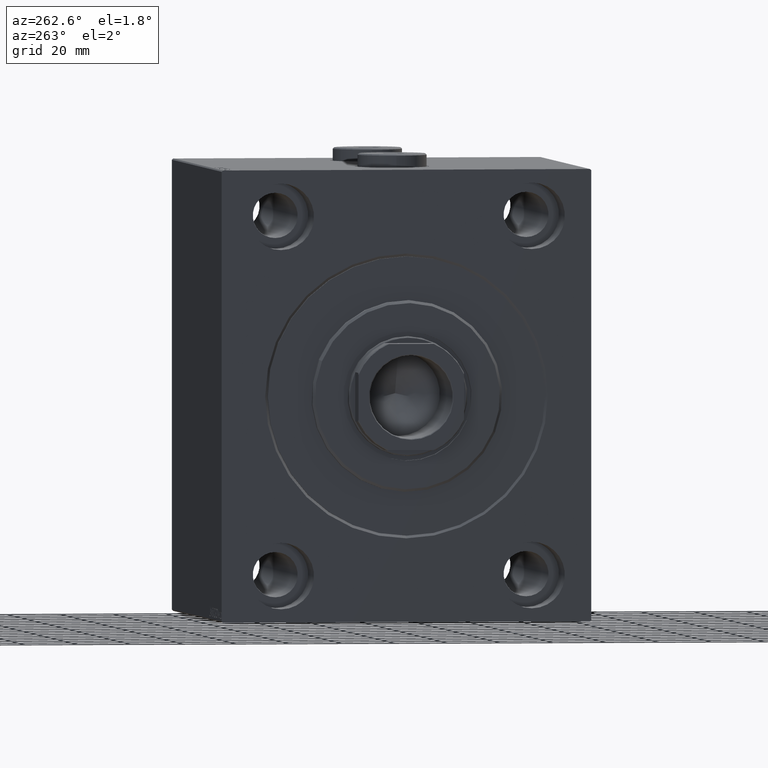
[diagram: clean part render]
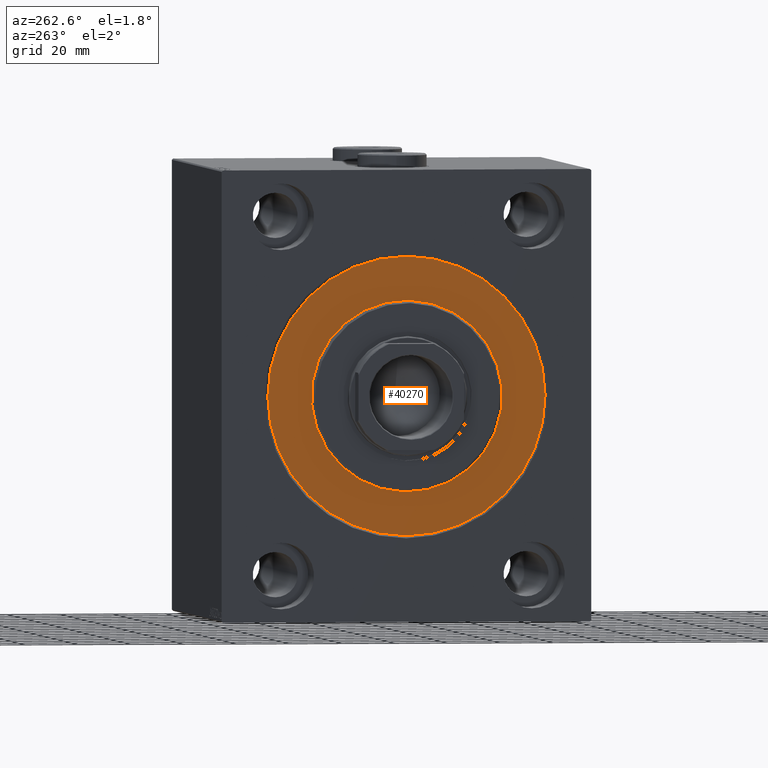
[diagram: same view with one face highlighted and labeled with its STEP entity id]
A machine part, auxiliary view. The second image highlights one B-rep face of the part: STEP entity #40270.
In plain terms, the highlighted planar face has unit normal (1, 0, -0).
Its self-contained STEP definition (entity closure, byte-faithful):
#820 = AXIS2_PLACEMENT_3D ( 'NONE', #12125, #5035, #35630 ) ;
#2230 = PLANE ( 'NONE',  #33795 ) ;
#3439 = DIRECTION ( 'NONE',  ( 0.000000000000000000, 0.000000000000000000, 1.000000000000000000 ) ) ;
#3952 = EDGE_CURVE ( 'NONE', #15549, #27847, #6601, .T. ) ;
#4103 = ORIENTED_EDGE ( 'NONE', *, *, #36922, .F. ) ;
#5035 = DIRECTION ( 'NONE',  ( 1.000000000000000000, -0.000000000000000000, 0.000000000000000000 ) ) ;
#5233 = CARTESIAN_POINT ( 'NONE',  ( 0.000000000000000000, 0.000000000000000000, 0.000000000000000000 ) ) ;
#6601 = CIRCLE ( 'NONE', #36483, 52.49999999999999289 ) ;
#6899 = ORIENTED_EDGE ( 'NONE', *, *, #33289, .F. ) ;
#7729 = EDGE_LOOP ( 'NONE', ( #4103, #6899 ) ) ;
#8821 = AXIS2_PLACEMENT_3D ( 'NONE', #28061, #17812, #3439 ) ;
#8832 = DIRECTION ( 'NONE',  ( 1.000000000000000000, -0.000000000000000000, 0.000000000000000000 ) ) ;
#9881 = VERTEX_POINT ( 'NONE', #17975 ) ;
#12034 = CARTESIAN_POINT ( 'NONE',  ( 0.000000000000000000, 0.000000000000000000, 0.000000000000000000 ) ) ;
#12125 = CARTESIAN_POINT ( 'NONE',  ( 0.000000000000000000, 0.000000000000000000, 0.000000000000000000 ) ) ;
#13925 = CIRCLE ( 'NONE', #8821, 52.49999999999999289 ) ;
#15549 = VERTEX_POINT ( 'NONE', #17668 ) ;
#16163 = CARTESIAN_POINT ( 'NONE',  ( 0.000000000000000000, 0.000000000000000000, 0.000000000000000000 ) ) ;
#16351 = EDGE_LOOP ( 'NONE', ( #28229, #44686 ) ) ;
#16787 = VERTEX_POINT ( 'NONE', #38226 ) ;
#17668 = CARTESIAN_POINT ( 'NONE',  ( 0.000000000000000000, 0.000000000000000000, -52.49999999999999289 ) ) ;
#17812 = DIRECTION ( 'NONE',  ( -1.000000000000000000, 0.000000000000000000, 0.000000000000000000 ) ) ;
#17975 = CARTESIAN_POINT ( 'NONE',  ( 0.000000000000000000, 0.000000000000000000, 36.00000000000000000 ) ) ;
#19024 = AXIS2_PLACEMENT_3D ( 'NONE', #12034, #8832, #23397 ) ;
#19342 = FACE_BOUND ( 'NONE', #7729, .T. ) ;
#20480 = CIRCLE ( 'NONE', #820, 36.00000000000000000 ) ;
#22317 = FACE_OUTER_BOUND ( 'NONE', #16351, .T. ) ;
#22769 = DIRECTION ( 'NONE',  ( -1.000000000000000000, 0.000000000000000000, 0.000000000000000000 ) ) ;
#23397 = DIRECTION ( 'NONE',  ( 0.000000000000000000, 0.000000000000000000, -1.000000000000000000 ) ) ;
#27847 = VERTEX_POINT ( 'NONE', #42955 ) ;
#28061 = CARTESIAN_POINT ( 'NONE',  ( 0.000000000000000000, 0.000000000000000000, 0.000000000000000000 ) ) ;
#28229 = ORIENTED_EDGE ( 'NONE', *, *, #3952, .F. ) ;
#30053 = DIRECTION ( 'NONE',  ( 0.000000000000000000, 0.000000000000000000, 1.000000000000000000 ) ) ;
#30076 = DIRECTION ( 'NONE',  ( -1.000000000000000000, 0.000000000000000000, 0.000000000000000000 ) ) ;
#30673 = CIRCLE ( 'NONE', #19024, 36.00000000000000000 ) ;
#31519 = EDGE_CURVE ( 'NONE', #27847, #15549, #13925, .T. ) ;
#33289 = EDGE_CURVE ( 'NONE', #16787, #9881, #20480, .T. ) ;
#33795 = AXIS2_PLACEMENT_3D ( 'NONE', #16163, #22769, #30053 ) ;
#35630 = DIRECTION ( 'NONE',  ( 0.000000000000000000, 0.000000000000000000, -1.000000000000000000 ) ) ;
#36483 = AXIS2_PLACEMENT_3D ( 'NONE', #5233, #30076, #44018 ) ;
#36922 = EDGE_CURVE ( 'NONE', #9881, #16787, #30673, .T. ) ;
#38226 = CARTESIAN_POINT ( 'NONE',  ( 0.000000000000000000, 4.408728476930470856E-15, -36.00000000000000000 ) ) ;
#40270 = ADVANCED_FACE ( 'NONE', ( #19342, #22317 ), #2230, .F. ) ;
#42955 = CARTESIAN_POINT ( 'NONE',  ( 0.000000000000000000, 6.429395695523603167E-15, 52.49999999999999289 ) ) ;
#44018 = DIRECTION ( 'NONE',  ( 0.000000000000000000, 0.000000000000000000, 1.000000000000000000 ) ) ;
#44686 = ORIENTED_EDGE ( 'NONE', *, *, #31519, .F. ) ;